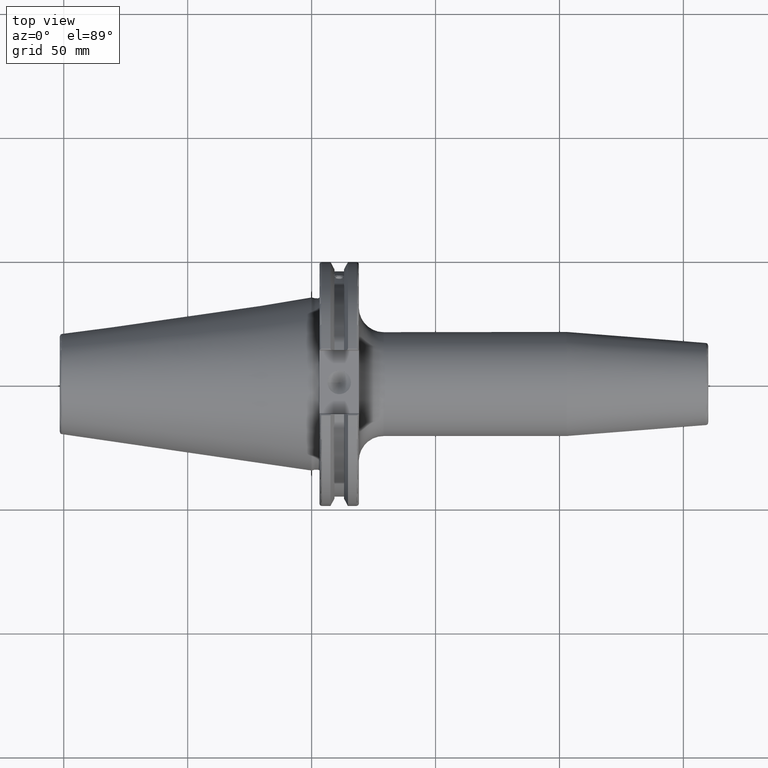
[diagram: clean part render]
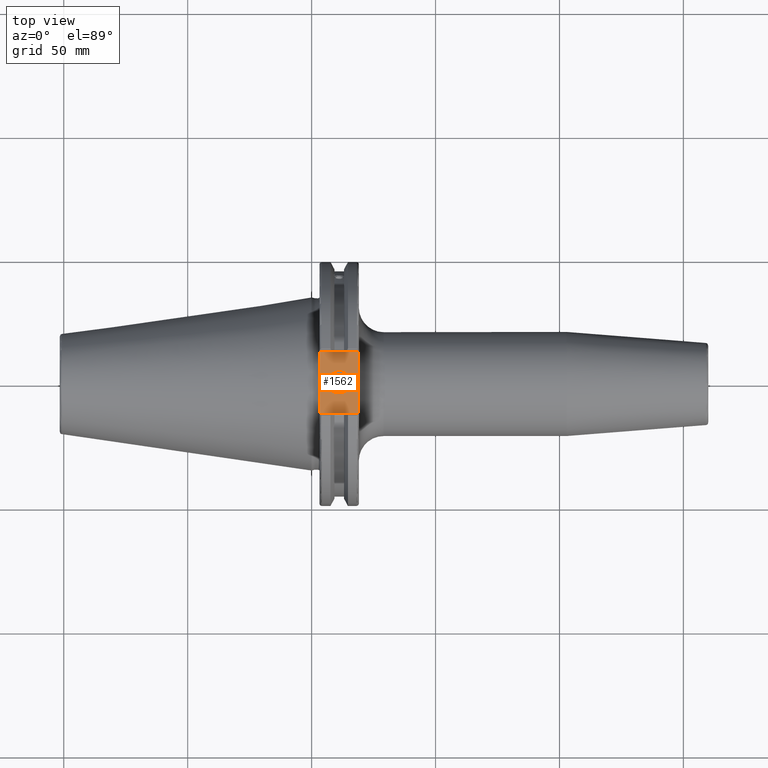
[diagram: same view with one face highlighted and labeled with its STEP entity id]
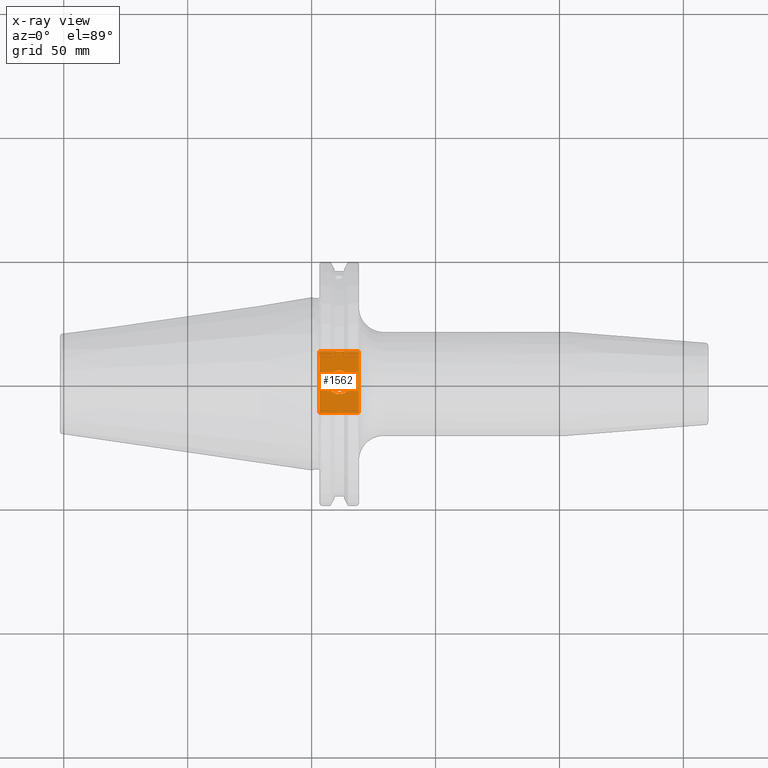
[diagram: x-ray of the same camera — body ghosted, the highlighted face saturated]
A machine part, top view. The second image highlights one B-rep face of the part: STEP entity #1562.
The next image is the same camera in x-ray: the body ghosted, the highlighted face saturated — about 0% of this face is hidden behind the body in this view.
In plain terms, the highlighted planar face has unit normal (0, 0, 1).
Its self-contained STEP definition (entity closure, byte-faithful):
#89=FACE_BOUND('',#357,.T.);
#124=PLANE('',#1748);
#248=FACE_OUTER_BOUND('',#356,.T.);
#356=EDGE_LOOP('',(#1430,#1431,#1432,#1433));
#357=EDGE_LOOP('',(#1434));
#376=LINE('',#2257,#470);
#416=LINE('',#2840,#510);
#444=LINE('',#3069,#538);
#446=LINE('',#3072,#540);
#470=VECTOR('',#1835,10.);
#510=VECTOR('',#2013,10.);
#538=VECTOR('',#2107,10.);
#540=VECTOR('',#2111,10.);
#622=CIRCLE('',#1740,4.7625);
#651=VERTEX_POINT('',#2254);
#652=VERTEX_POINT('',#2256);
#735=VERTEX_POINT('',#2837);
#736=VERTEX_POINT('',#2839);
#782=VERTEX_POINT('',#3108);
#813=EDGE_CURVE('',#651,#652,#376,.T.);
#920=EDGE_CURVE('',#735,#736,#416,.T.);
#983=EDGE_CURVE('',#652,#735,#444,.T.);
#985=EDGE_CURVE('',#736,#651,#446,.T.);
#1000=EDGE_CURVE('',#782,#782,#622,.T.);
#1430=ORIENTED_EDGE('',*,*,#983,.F.);
#1431=ORIENTED_EDGE('',*,*,#813,.F.);
#1432=ORIENTED_EDGE('',*,*,#985,.F.);
#1433=ORIENTED_EDGE('',*,*,#920,.F.);
#1434=ORIENTED_EDGE('',*,*,#1000,.T.);
#1562=ADVANCED_FACE('',(#248,#89),#124,.T.);
#1740=AXIS2_PLACEMENT_3D('',#3109,#2146,#2147);
#1748=AXIS2_PLACEMENT_3D('',#3118,#2163,#2164);
#1835=DIRECTION('',(0.,-1.,0.));
#2013=DIRECTION('',(0.,1.,0.));
#2107=DIRECTION('',(-1.,1.31581988103722E-16,0.));
#2111=DIRECTION('',(1.,0.,0.));
#2146=DIRECTION('center_axis',(0.,0.,-1.));
#2147=DIRECTION('ref_axis',(1.,0.,0.));
#2163=DIRECTION('center_axis',(0.,0.,1.));
#2164=DIRECTION('ref_axis',(1.,0.,0.));
#2254=CARTESIAN_POINT('',(19.05,12.45,37.719));
#2256=CARTESIAN_POINT('',(19.05,-12.45,37.719));
#2257=CARTESIAN_POINT('',(19.05,0.,37.719));
#2837=CARTESIAN_POINT('',(3.175,-12.45,37.719));
#2839=CARTESIAN_POINT('',(3.175,12.45,37.719));
#2840=CARTESIAN_POINT('',(3.175,24.60625,37.719));
#3069=CARTESIAN_POINT('',(10.63125,-12.45,37.719));
#3072=CARTESIAN_POINT('',(19.06875,12.45,37.719));
#3108=CARTESIAN_POINT('',(6.3716,-5.83238038093927E-16,37.719));
#3109=CARTESIAN_POINT('Origin',(11.1341,0.,37.719));
#3118=CARTESIAN_POINT('Origin',(18.0875,0.,37.719));